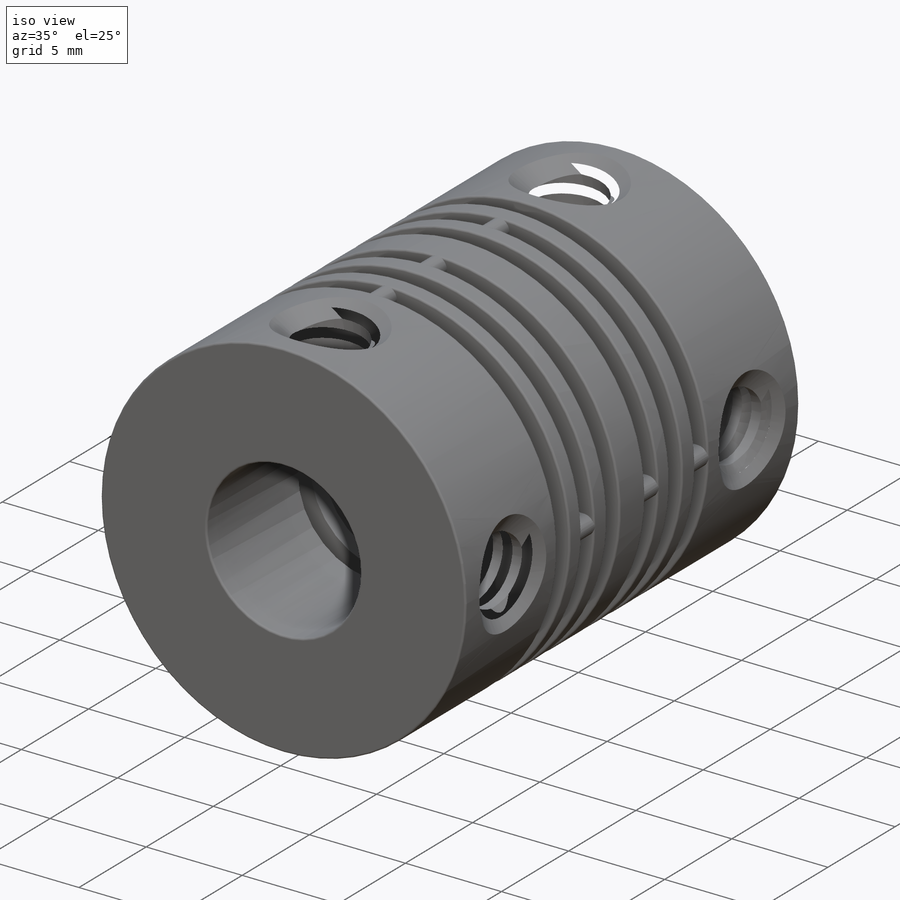
[diagram: iso view]
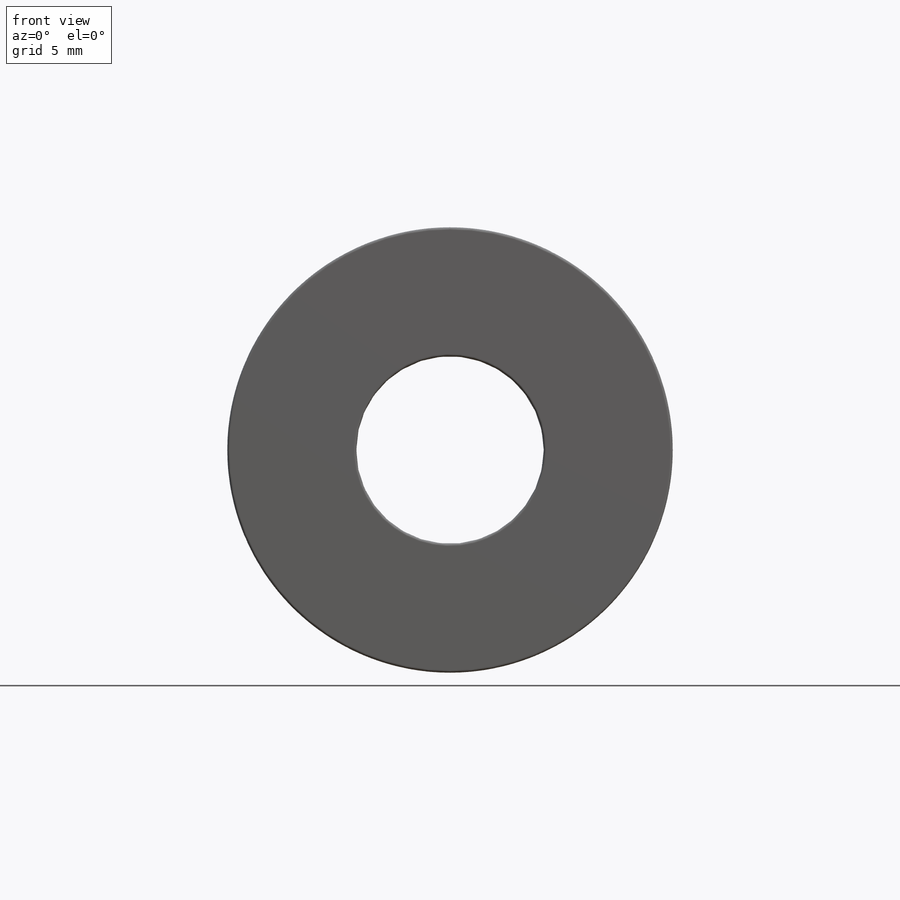
[diagram: front view]
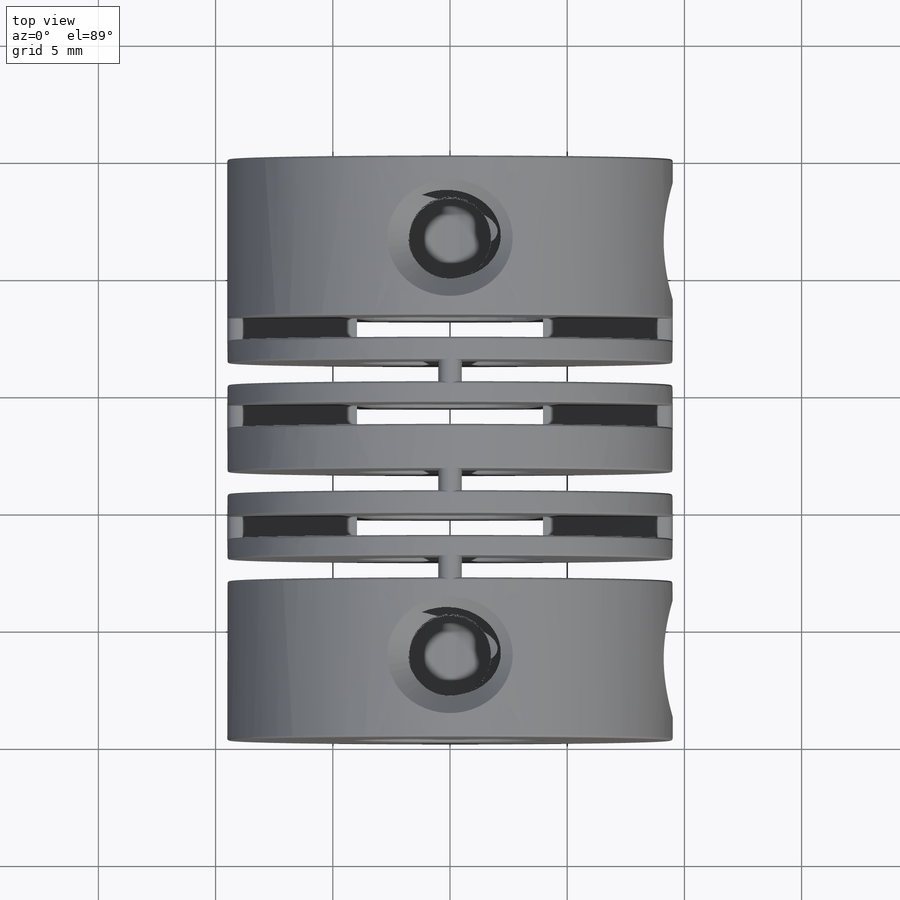
[diagram: top view]
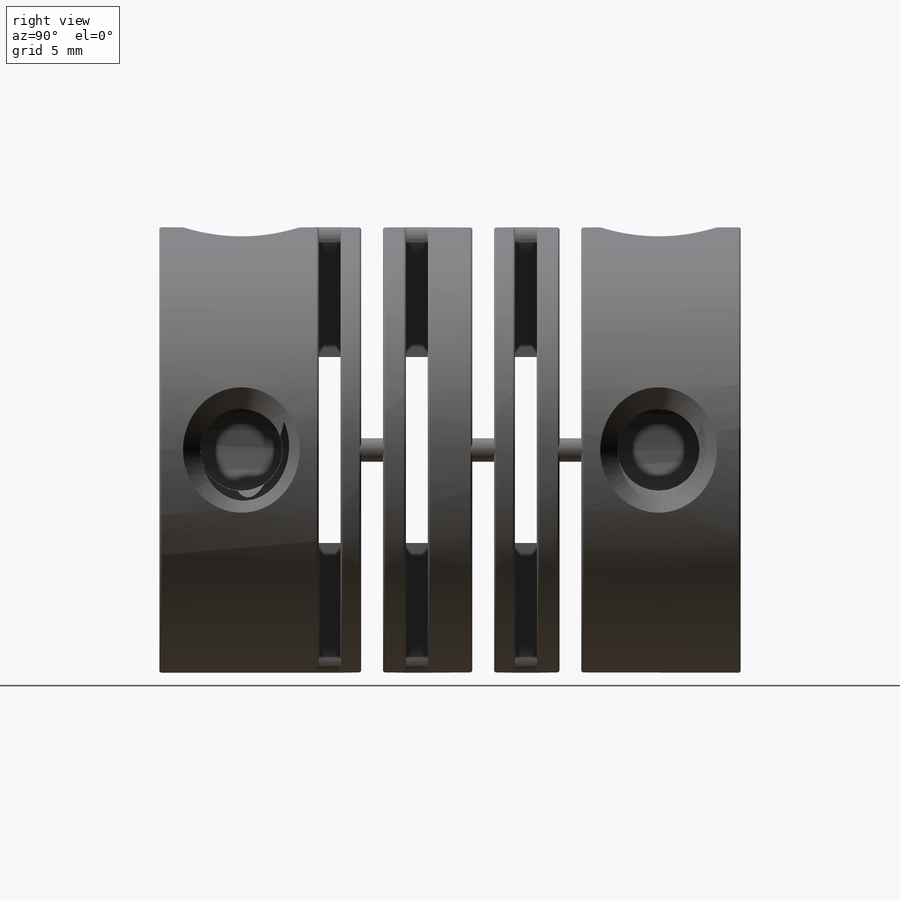
[diagram: right view]
SOLIDWORKS PART (.sldprt)
format: sldprt  version: not decoded by parser v0  size: 1,086,464 bytes
history: native  units: mm
features: sketch x6, pattern_linear x5, plane x3, cut_extrude x3, mirror x2, fillet x2, material x1, extrude x1, chamfer x1, helix x1, sweep x1, pattern_circular x1 (+11 scaffold rows collapsed)
feature tree (38):
  scaffold x11  (default folders/planes/origin — collapsed)
  material  "PBT General Purpose"
  sketch  "Sketch1"  dims[D1=19.0mm D2=8.0mm]
  extrude  "Boss-Extrude1"  Depth=24.8mm
  plane  "Plane1"
  sketch  "Sketch2"  dims[D1=7.265mm D2=19.0mm D3=0.93mm]
  cut_extrude  "Cut-Extrude1"  Depth=9mm
  mirror  "Mirror1"
  pattern_linear  "LPattern1"  Count1=2 Count2=1 Spacing1=3.72mm Spacing2=50mm
  plane  "Plane2"
  sketch  "Sketch3"  dims[D1=7.265mm D2=19.0mm D3=0.93mm]
  cut_extrude  "Cut-Extrude2"  Depth=9mm
  mirror  "Mirror2"
  pattern_linear  "LPattern2"  Count1=2 Count2=1 Spacing1=3.72mm Spacing2=50mm
  pattern_linear  "LPattern3"  Count1=2 Count2=1 Spacing1=8.46mm Spacing2=50mm
  pattern_linear  "LPattern4"  Count1=2 Count2=1 Spacing1=8.37mm Spacing2=50mm
  fillet  "Fillet1"  Radius=0.1mm
  fillet  "Fillet2"  Radius=0.5mm
  plane  "Plane3"  Offset=3.5mm
  sketch  "Sketch4"  dims[D2=3.5mm D1=3.5mm]
  cut_extrude  "Cut-Extrude3"  [1 undecoded]
  chamfer  "Chamfer1"  Distance=1mm Angle=45deg
  sketch  "Sketch5"
  helix  "Helix/Spiral1"  Pitch=6mm
  sketch  "Sketch6"  dims[c1.D1=~0.56403mm c1.D2=0.5mm c2.D1=60.0deg]
  sweep  "Cut-Sweep1"
  pattern_circular  "CirPattern1"  Count=2 Angle=90deg
  pattern_linear  "LPattern5"  Count1=2 Count2=1 Spacing1=17.8mm Spacing2=50mm
decode coverage: 18 of 23 modeling features carry decoded parameters
note: ~ marks probable driven/reference dimensions
note: 1 parameter value undecoded
note: suppression state not decoded; provenance and decode notes live in map.json
